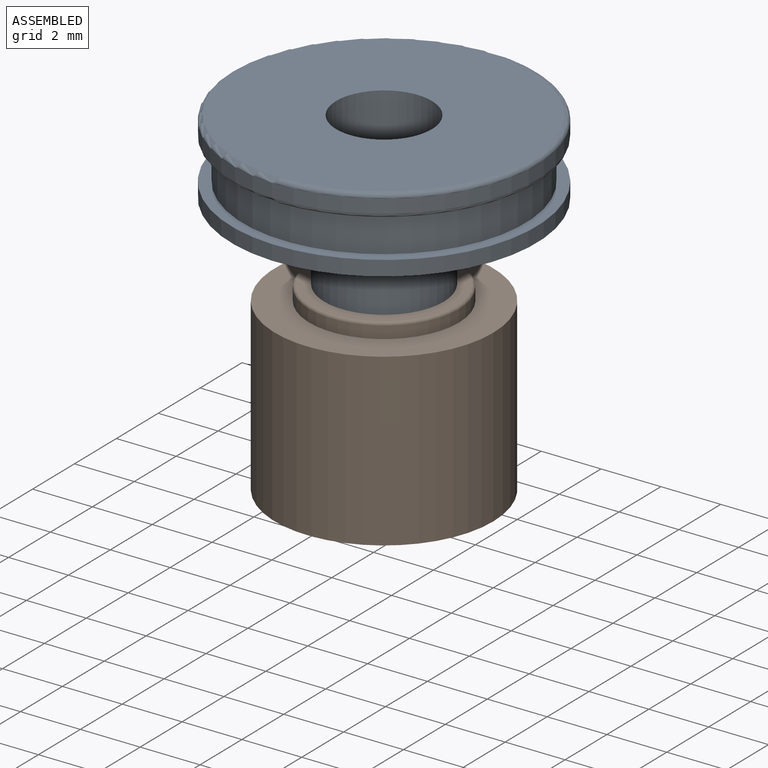
[diagram: assembled view]
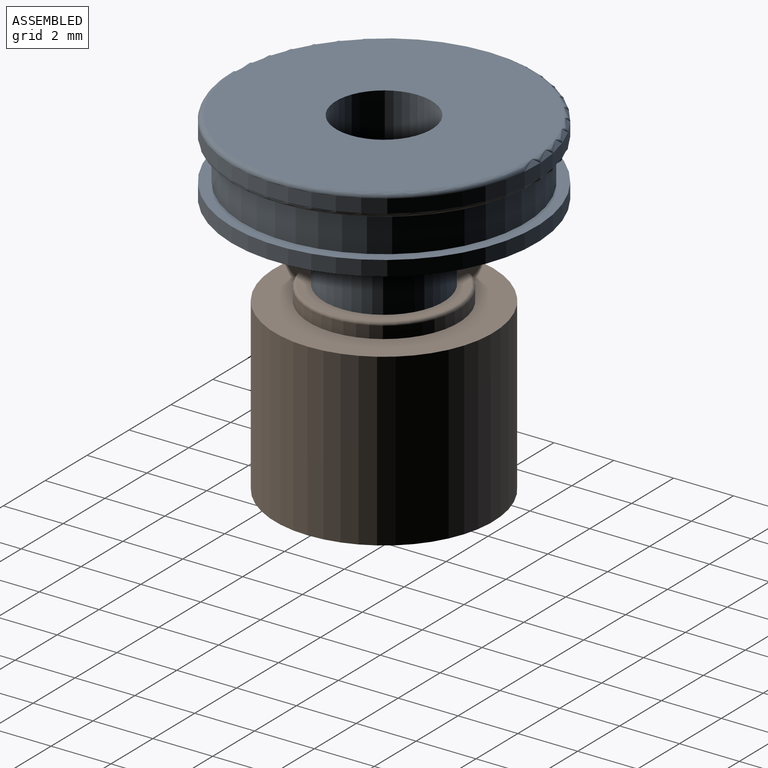
[diagram: assembled view, second angle]
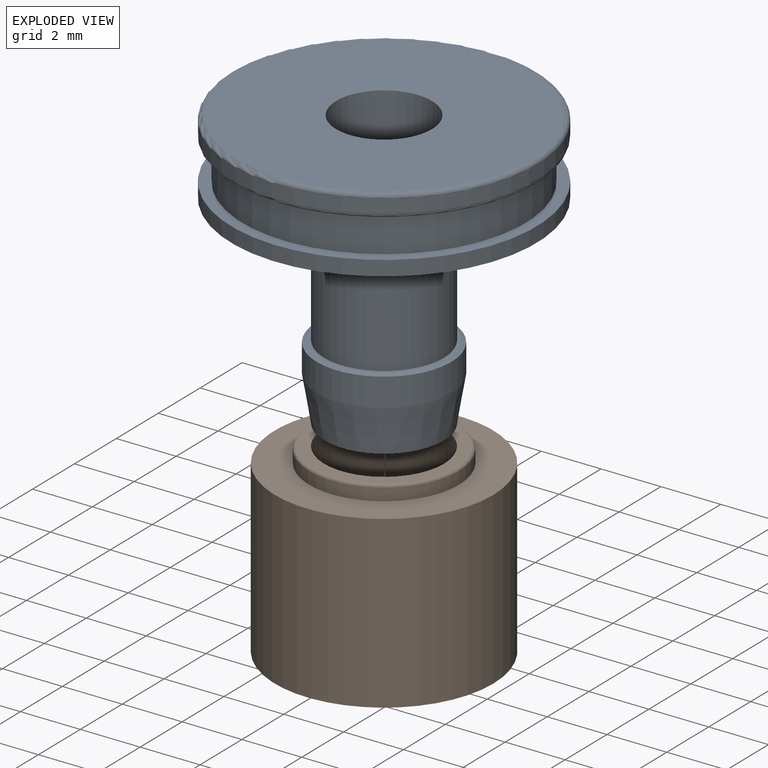
[diagram: exploded view]
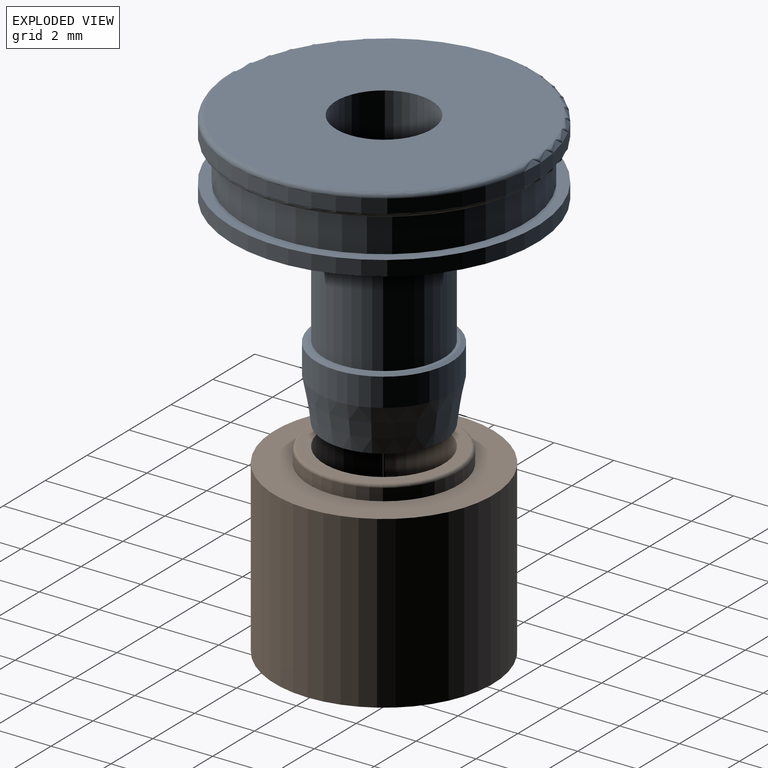
[diagram: exploded view, second angle]
ASSEMBLY  parts=2 mates=2
PART A: 18 faces, bbox 11x11x9.3 mm
  f0: cylinder r=5.1mm len=10.2mm, axis (0,0,-1), area 16mm2, adj f1,f17
  f1: plane 10.2x10.2mm, normal (0,0,1), area 11.6mm2, adj f0,f2
  f2: cylinder r=4.72mm len=9.45mm, axis (0,0,-1), area 37.1mm2, adj f1,f3
  f3: plane 9.9x9.9mm, normal (0,0,-1), area 6.8mm2, adj f2,f4
  f4: torus R=4.95mm, axis (0,0,-1), area 7.5mm2, adj f3,f5
  f5: cylinder r=5.1mm len=10.2mm, axis (0,0,-1), area 14.4mm2, adj f4,f6
  f6: torus R=4.95mm, axis (0,0,-1), area 7.5mm2, adj f5,f7
  f7: plane 9.9x9.9mm, normal (0,0,1), area 68.9mm2, adj f6,f8
  f8: cylinder r=1.6mm len=9.3mm, axis (0,0,-1), area 93.5mm2, adj f7,f9
  f9: plane 4x4mm, normal (0,0,-1), area 4.5mm2, adj f8,f10
  f10: cone r=2.25mm half-angle=9.5deg, axis (0,0,1), area 20.3mm2, adj f9,f11
  f11: cylinder r=2.25mm len=4.5mm, axis (0,0,-1), area 13.4mm2, adj f10,f12
  f12: cone r=2.1mm half-angle=70deg, axis (0,0,-1), area 2.2mm2, adj f11,f13
  f13: plane 4.2x4.2mm, normal (0,0,1), area 1.3mm2, adj f12,f14
  f14: cylinder r=2mm len=4mm, axis (0,0,-1), area 41.5mm2, adj f13,f15
  f15: plane 4.4x4.4mm, normal (0,0,-1), area 2.6mm2, adj f14,f16
  f16: cone r=2.2mm half-angle=62.2deg, axis (0,0,1), area 42.5mm2, adj f15,f17
  f17: plane 10.2x10.2mm, normal (0,0,-1), area 28.9mm2, adj f0,f16
PART B: 9 faces, bbox 7.3x7.3x6.2 mm
  f0: cylinder r=2mm len=4mm, axis (0,0,-1), area 21.4mm2, adj f5,f8
  f1: cylinder r=3.65mm len=7.3mm, axis (0,0,-1), area 130.7mm2, adj f2,f3
  f2: plane 7.3x7.3mm, normal (0,0,1), area 22.2mm2, adj f1,f4
  f3: plane 7.3x7.3mm, normal (0,0,-1), area 22.2mm2, adj f1,f7
  f4: cylinder r=2.5mm len=5mm, axis (0,0,-1), area 6.3mm2, adj f2,f6
  f5: plane 4.8x4.8mm, normal (0,0,1), area 5.5mm2, adj f0,f6
  f6: torus R=2.4mm, axis (0,0,1), area 2.4mm2, adj f4,f5
  f7: cylinder r=2.5mm len=5mm, axis (0,0,-1), area 70.7mm2, adj f3,f8
  f8: plane 5x5mm, normal (0,0,-1), area 7.1mm2, adj f0,f7
PLACE A rot(axis=(0.3,0.39,-0.87),0deg) t=(2.31,-9.66,7.35)mm
PLACE B t=(2.31,-9.66,5.35)mm
MATE parallel B.f4 <-> A.f0  axis (0,0,1) through (2.31,-9.66,11.55)mm
MATE slider A.f0 <-> B.f7  axis (0,0,-1) through (2.31,-9.66,16.65)mm
